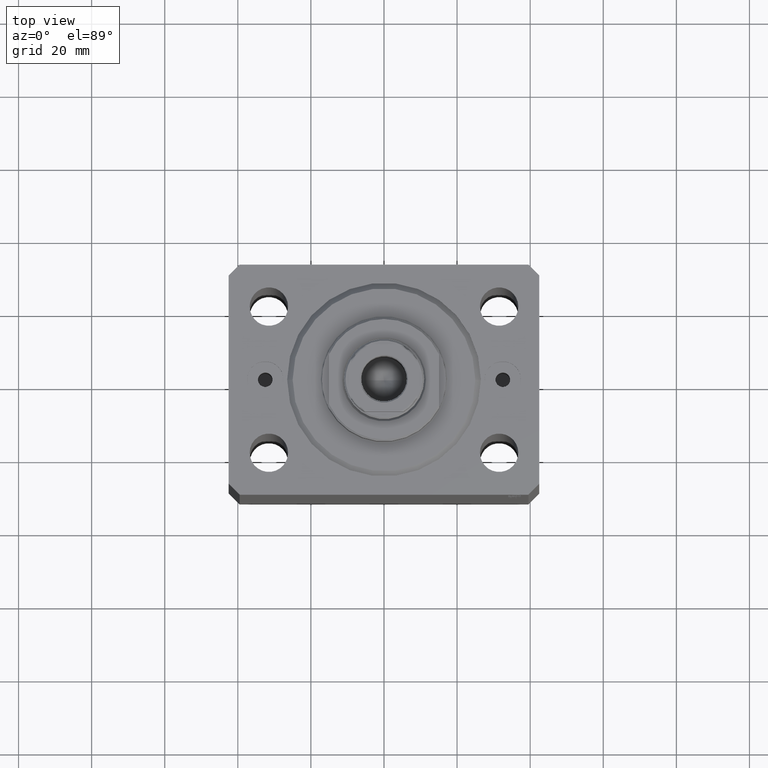
[diagram: clean part render]
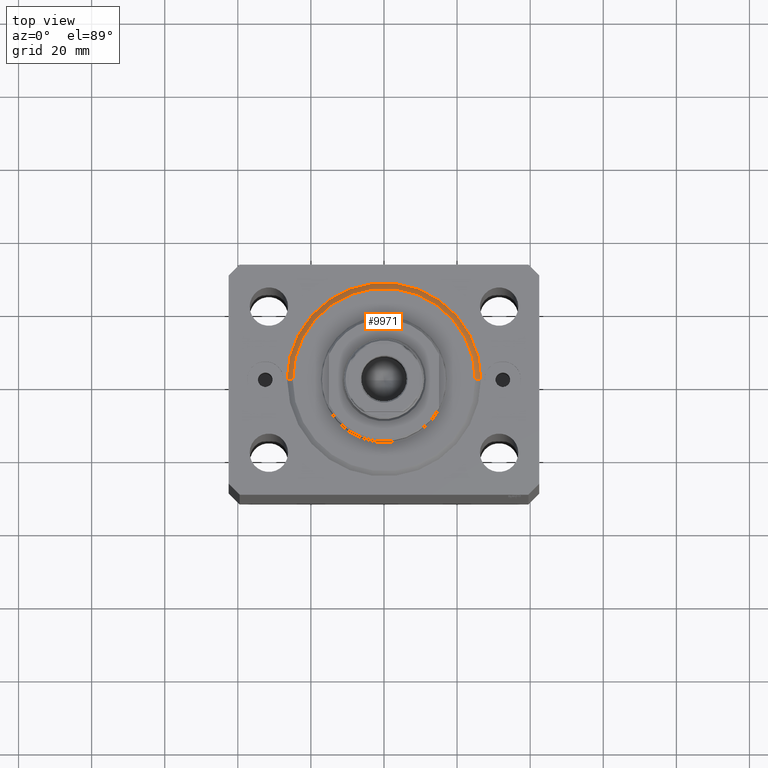
[diagram: same view with one face highlighted and labeled with its STEP entity id]
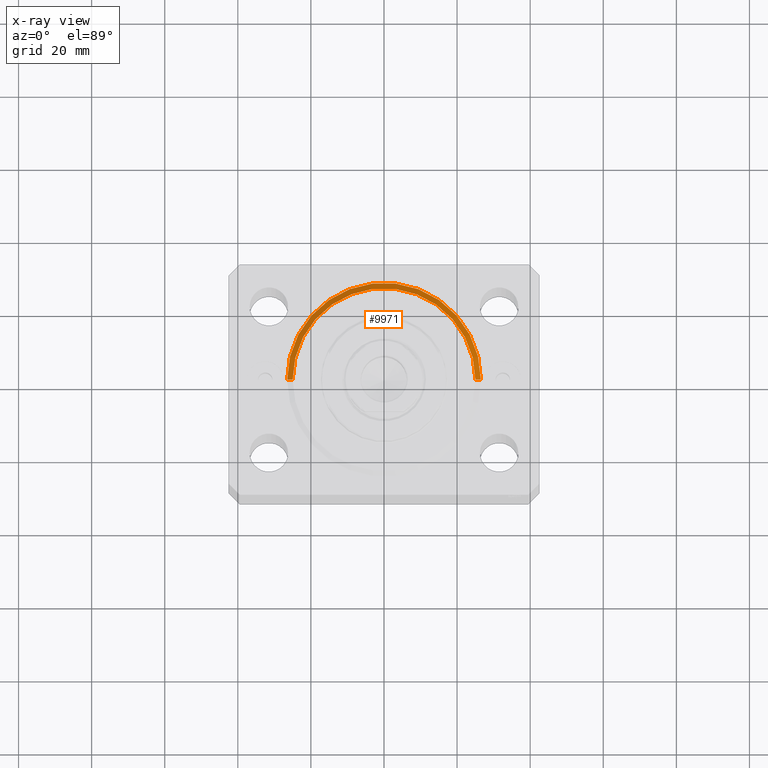
[diagram: x-ray of the same camera — body ghosted, the highlighted face saturated]
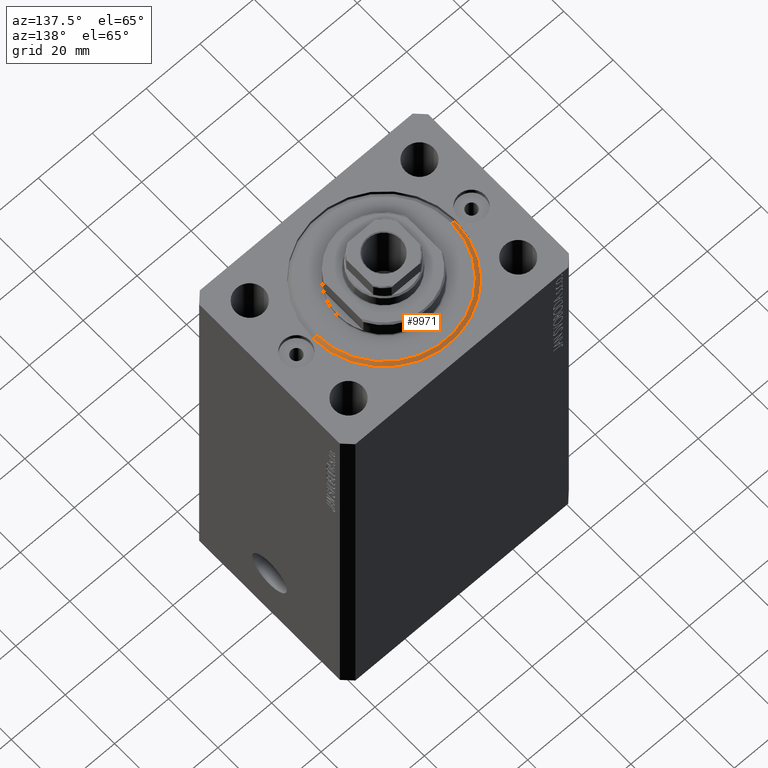
[diagram: same view with one face highlighted and labeled with its STEP entity id]
A machine part, top view. The second image highlights one B-rep face of the part: STEP entity #9971.
The next image is the same camera in x-ray: the body ghosted, the highlighted face saturated — about 0% of this face is hidden behind the body in this view.
A second angle (auxiliary view) of the same face is appended — the face is thin or edge-on in the first view.
In plain terms, the highlighted conical surface has half-angle 45 deg.
Its self-contained STEP definition (entity closure, byte-faithful):
#975 = CARTESIAN_POINT ( 'NONE',  ( 0.000000000000000000, 0.000000000000000000, 1.500000000000046407 ) ) ;
#1299 = DIRECTION ( 'NONE',  ( -0.000000000000000000, -0.000000000000000000, -1.000000000000000000 ) ) ;
#5665 = VERTEX_POINT ( 'NONE', #30358 ) ;
#5752 = EDGE_CURVE ( 'NONE', #5665, #43210, #7174, .T. ) ;
#6145 = DIRECTION ( 'NONE',  ( -0.000000000000000000, -0.000000000000000000, 1.000000000000000000 ) ) ;
#6765 = EDGE_CURVE ( 'NONE', #43291, #5665, #27659, .T. ) ;
#6960 = CARTESIAN_POINT ( 'NONE',  ( 24.99999999999995026, 0.000000000000000000, 0.000000000000000000 ) ) ;
#7174 = CIRCLE ( 'NONE', #30104, 26.50000000000000355 ) ;
#7807 = ORIENTED_EDGE ( 'NONE', *, *, #35229, .T. ) ;
#9607 = VERTEX_POINT ( 'NONE', #12288 ) ;
#9971 = ADVANCED_FACE ( 'NONE', ( #14206 ), #18738, .T. ) ;
#10517 = AXIS2_PLACEMENT_3D ( 'NONE', #35378, #1299, #15633 ) ;
#10642 = VECTOR ( 'NONE', #13101, 1000.000000000000000 ) ;
#12288 = CARTESIAN_POINT ( 'NONE',  ( -24.99999999999995026, 3.153465507804431248E-15, 0.000000000000000000 ) ) ;
#13101 = DIRECTION ( 'NONE',  ( -0.7071067811865491270, 8.659560562354952580E-17, 0.7071067811865459074 ) ) ;
#13976 = DIRECTION ( 'NONE',  ( 1.000000000000000000, 0.000000000000000000, 0.000000000000000000 ) ) ;
#14206 = FACE_OUTER_BOUND ( 'NONE', #29735, .T. ) ;
#15633 = DIRECTION ( 'NONE',  ( 1.000000000000000000, 0.000000000000000000, 0.000000000000000000 ) ) ;
#15928 = EDGE_CURVE ( 'NONE', #9607, #43291, #38491, .T. ) ;
#17353 = DIRECTION ( 'NONE',  ( -0.000000000000000000, -0.000000000000000000, 1.000000000000000000 ) ) ;
#18738 = CONICAL_SURFACE ( 'NONE', #37377, 26.50000000000000355, 0.7853981633974506105 ) ;
#19832 = CARTESIAN_POINT ( 'NONE',  ( -26.50000000000000355, 3.245314017740486554E-15, 1.500000000000046407 ) ) ;
#22280 = ORIENTED_EDGE ( 'NONE', *, *, #15928, .F. ) ;
#26697 = ORIENTED_EDGE ( 'NONE', *, *, #5752, .F. ) ;
#26790 = LINE ( 'NONE', #19832, #10642 ) ;
#27292 = VECTOR ( 'NONE', #41785, 1000.000000000000000 ) ;
#27659 = LINE ( 'NONE', #31699, #27292 ) ;
#29735 = EDGE_LOOP ( 'NONE', ( #22280, #7807, #26697, #39617 ) ) ;
#30104 = AXIS2_PLACEMENT_3D ( 'NONE', #36868, #6145, #33502 ) ;
#30358 = CARTESIAN_POINT ( 'NONE',  ( 26.50000000000000355, 3.245314017740485765E-15, 1.500000000000046407 ) ) ;
#31699 = CARTESIAN_POINT ( 'NONE',  ( 26.50000000000000355, 0.000000000000000000, 1.500000000000046407 ) ) ;
#33502 = DIRECTION ( 'NONE',  ( 1.000000000000000000, 0.000000000000000000, 0.000000000000000000 ) ) ;
#35229 = EDGE_CURVE ( 'NONE', #9607, #43210, #26790, .T. ) ;
#35378 = CARTESIAN_POINT ( 'NONE',  ( 0.000000000000000000, 0.000000000000000000, 0.000000000000000000 ) ) ;
#36805 = CARTESIAN_POINT ( 'NONE',  ( -26.50000000000000355, 0.000000000000000000, 1.500000000000046407 ) ) ;
#36868 = CARTESIAN_POINT ( 'NONE',  ( 0.000000000000000000, 0.000000000000000000, 1.500000000000046407 ) ) ;
#37377 = AXIS2_PLACEMENT_3D ( 'NONE', #975, #17353, #13976 ) ;
#38491 = CIRCLE ( 'NONE', #10517, 24.99999999999995026 ) ;
#39617 = ORIENTED_EDGE ( 'NONE', *, *, #6765, .F. ) ;
#41785 = DIRECTION ( 'NONE',  ( 0.7071067811865491270, 0.000000000000000000, 0.7071067811865459074 ) ) ;
#43210 = VERTEX_POINT ( 'NONE', #36805 ) ;
#43291 = VERTEX_POINT ( 'NONE', #6960 ) ;